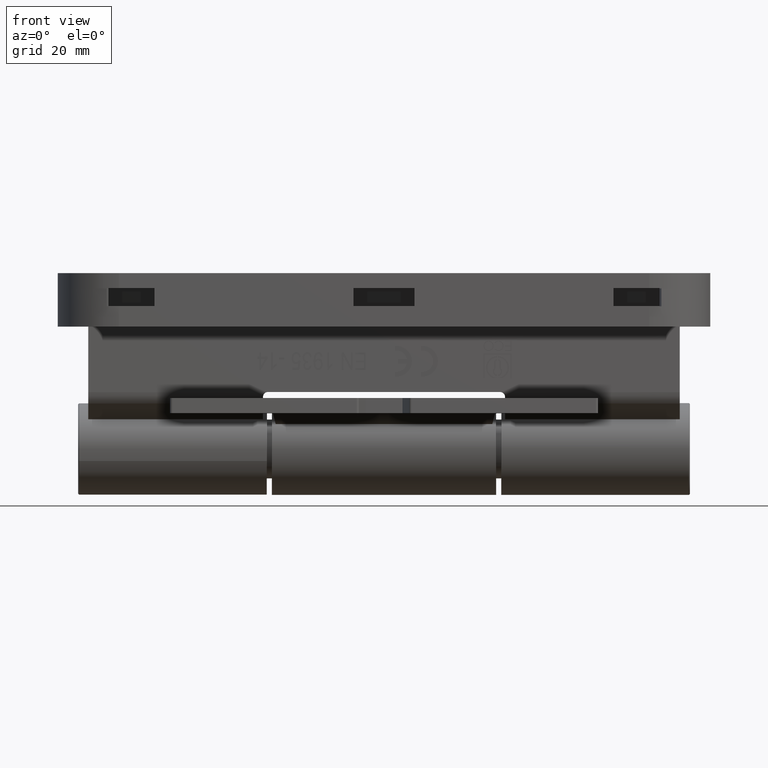
[diagram: clean part render]
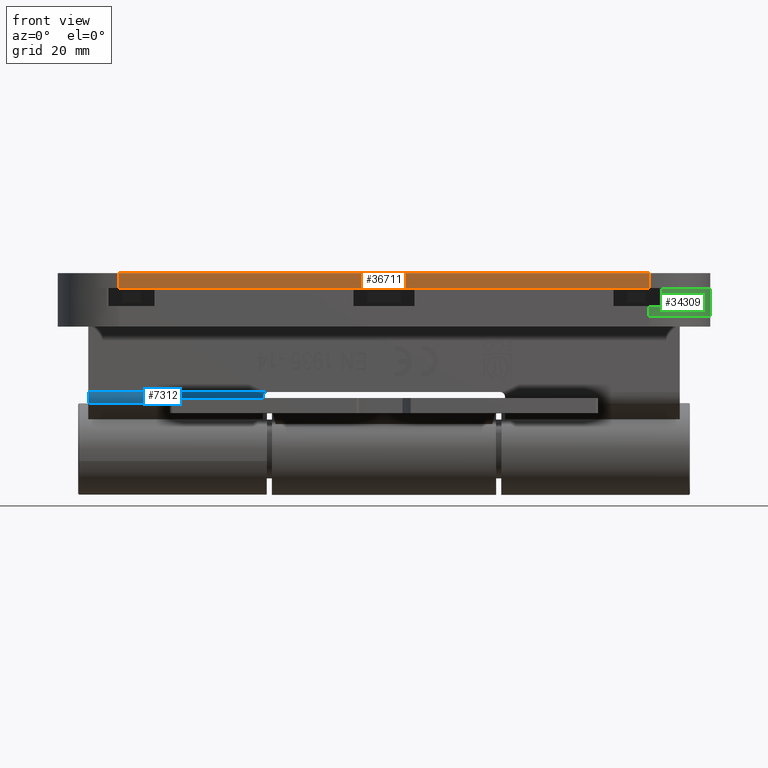
[diagram: same view with three faces highlighted in distinct colors, each labeled with its STEP entity id]
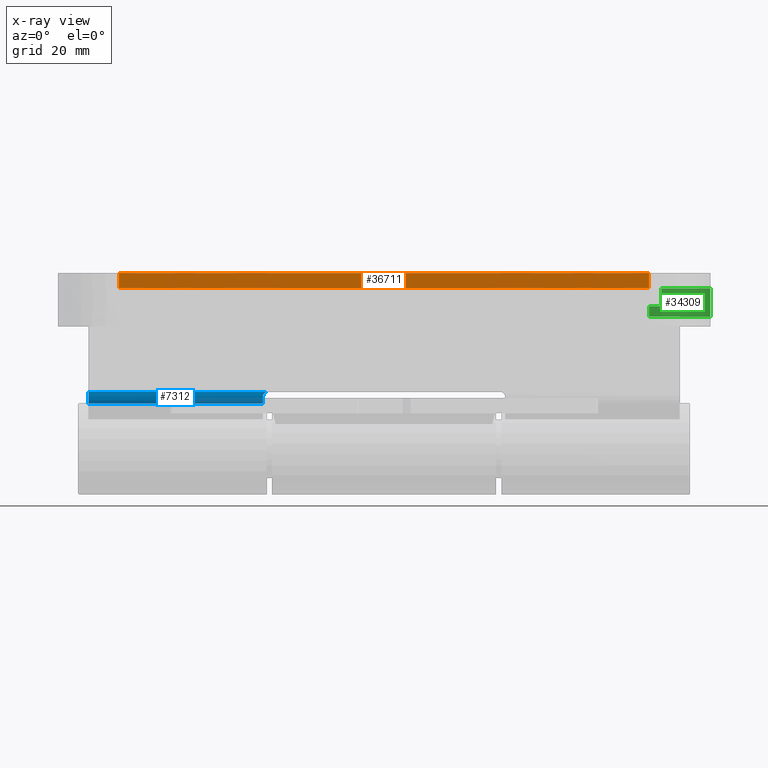
[diagram: x-ray of the same camera — body ghosted, the three highlighted faces saturated]
A machine part, front view with three faces highlighted in distinct colors.
The next image is the same camera in x-ray (body ghosted, the three faces saturated) — at least one of them is partly hidden behind the body in this view.
Their STEP definitions:

[orange] entity #36711 — the highlighted planar face has unit normal (-0, -1, -0).
#714 = CARTESIAN_POINT ( 'NONE',  ( 2.775557561562891351E-14, 51.99999999999999289, 0.000000000000000000 ) ) ;
#1674 = VERTEX_POINT ( 'NONE', #28899 ) ;
#6886 = CARTESIAN_POINT ( 'NONE',  ( 4.163336342344337027E-14, 64.00000000000000000, 0.000000000000000000 ) ) ;
#7826 = ORIENTED_EDGE ( 'NONE', *, *, #23170, .F. ) ;
#8735 = CARTESIAN_POINT ( 'NONE',  ( -3.469446951953614189E-14, -52.00000000000002132, -2.760696280273786662 ) ) ;
#9075 = DIRECTION ( 'NONE',  ( 5.916456789157588541E-31, 1.295404630198729935E-30, 1.000000000000000000 ) ) ;
#9267 = LINE ( 'NONE', #8735, #33340 ) ;
#9695 = DIRECTION ( 'NONE',  ( 1.000000000000000000, 6.661338147750980658E-16, -1.224646799147359370E-16 ) ) ;
#13073 = EDGE_CURVE ( 'NONE', #1674, #30414, #33997, .T. ) ;
#16693 = CARTESIAN_POINT ( 'NONE',  ( 4.163336342344337027E-14, 64.00000000000000000, 2.999999999999999112 ) ) ;
#19264 = DIRECTION ( 'NONE',  ( -6.661338147750984602E-16, -1.000000000000000000, -1.295404630198729585E-30 ) ) ;
#21717 = LINE ( 'NONE', #26376, #51412 ) ;
#23170 = EDGE_CURVE ( 'NONE', #27733, #24642, #40714, .T. ) ;
#24642 = VERTEX_POINT ( 'NONE', #42867 ) ;
#26127 = EDGE_CURVE ( 'NONE', #24642, #30414, #9267, .T. ) ;
#26376 = CARTESIAN_POINT ( 'NONE',  ( 3.469446951953614189E-14, 51.99999999999999289, -2.760696280273786662 ) ) ;
#26726 = PLANE ( 'NONE',  #43043 ) ;
#27733 = VERTEX_POINT ( 'NONE', #714 ) ;
#27888 = CARTESIAN_POINT ( 'NONE',  ( -3.469446951953614189E-14, -52.00000000000002132, 2.999999999999999112 ) ) ;
#28899 = CARTESIAN_POINT ( 'NONE',  ( 2.775557561562891351E-14, 51.99999999999999289, 2.999999999999999112 ) ) ;
#30414 = VERTEX_POINT ( 'NONE', #27888 ) ;
#33340 = VECTOR ( 'NONE', #42536, 1000.000000000000000 ) ;
#33997 = LINE ( 'NONE', #16693, #44540 ) ;
#36711 = ADVANCED_FACE ( 'NONE', ( #51999 ), #26726, .T. ) ;
#37411 = ORIENTED_EDGE ( 'NONE', *, *, #13073, .T. ) ;
#40169 = ORIENTED_EDGE ( 'NONE', *, *, #44958, .T. ) ;
#40714 = LINE ( 'NONE', #6886, #53414 ) ;
#42536 = DIRECTION ( 'NONE',  ( 5.916456789157588541E-31, 1.295404630198729935E-30, 1.000000000000000000 ) ) ;
#42867 = CARTESIAN_POINT ( 'NONE',  ( -2.775557561562891351E-14, -52.00000000000002132, 3.469446951953614189E-15 ) ) ;
#43043 = AXIS2_PLACEMENT_3D ( 'NONE', #43229, #9695, #47350 ) ;
#43229 = CARTESIAN_POINT ( 'NONE',  ( 4.163336342344337027E-14, 64.00000000000000000, 0.000000000000000000 ) ) ;
#44540 = VECTOR ( 'NONE', #45835, 1000.000000000000000 ) ;
#44958 = EDGE_CURVE ( 'NONE', #27733, #1674, #21717, .T. ) ;
#45835 = DIRECTION ( 'NONE',  ( -6.661338147750984602E-16, -1.000000000000000000, -1.295404630198729585E-30 ) ) ;
#47350 = DIRECTION ( 'NONE',  ( -1.224646799147359370E-16, -1.376982494605543984E-30, -1.000000000000000000 ) ) ;
#51412 = VECTOR ( 'NONE', #9075, 1000.000000000000000 ) ;
#51999 = FACE_OUTER_BOUND ( 'NONE', #52665, .T. ) ;
#52142 = ORIENTED_EDGE ( 'NONE', *, *, #26127, .F. ) ;
#52665 = EDGE_LOOP ( 'NONE', ( #7826, #40169, #37411, #52142 ) ) ;
#53414 = VECTOR ( 'NONE', #19264, 1000.000000000000000 ) ;

[blue] entity #7312 — the highlighted cylindrical surface (edge-blend (fillet) strip) has radius 3.5 mm, axis along (1, 0, 0).
#308 = ORIENTED_EDGE ( 'NONE', *, *, #34612, .F. ) ;
#1348 = EDGE_CURVE ( 'NONE', #27040, #42845, #50378, .T. ) ;
#3172 = CARTESIAN_POINT ( 'NONE',  ( -27.00198344250299698, 23.25764091194345085, 23.44263621508848772 ) ) ;
#3556 = DIRECTION ( 'NONE',  ( -6.661338147750984602E-16, -1.000000000000000000, -1.295404630198729585E-30 ) ) ;
#7312 = ADVANCED_FACE ( 'NONE', ( #8212 ), #38171, .T. ) ;
#7837 = CARTESIAN_POINT ( 'NONE',  ( -26.99972891110001427, 23.01392900316891854, 23.34072689707297243 ) ) ;
#8160 = EDGE_CURVE ( 'NONE', #35399, #31731, #30858, .T. ) ;
#8212 = FACE_OUTER_BOUND ( 'NONE', #31329, .T. ) ;
#8887 = DIRECTION ( 'NONE',  ( -6.661338147750984602E-16, -1.000000000000000000, -1.295404630198729585E-30 ) ) ;
#9536 = CARTESIAN_POINT ( 'NONE',  ( -27.14589803375030641, 23.74999999999998579, 24.31427028705643067 ) ) ;
#12234 = CARTESIAN_POINT ( 'NONE',  ( -26.99999999999997158, 22.88318404115338112, 23.31427028705642002 ) ) ;
#15159 = ORIENTED_EDGE ( 'NONE', *, *, #16995, .T. ) ;
#15813 = CARTESIAN_POINT ( 'NONE',  ( -27.14589803375030641, 23.74999999999998579, 24.31427028705643067 ) ) ;
#16085 = CARTESIAN_POINT ( 'NONE',  ( -27.00468803263734685, 23.36920283629278217, 23.51815446720102543 ) ) ;
#16820 = CARTESIAN_POINT ( 'NONE',  ( -26.99999999999997868, 22.74999999999997868, 23.31427028705642357 ) ) ;
#16899 = EDGE_CURVE ( 'NONE', #31731, #17926, #39914, .T. ) ;
#16995 = EDGE_CURVE ( 'NONE', #35399, #27040, #36921, .T. ) ;
#17153 = CARTESIAN_POINT ( 'NONE',  ( -30.49999999999996447, 57.99999999999997158, 23.31427028705642712 ) ) ;
#17926 = VERTEX_POINT ( 'NONE', #9536 ) ;
#22189 = ORIENTED_EDGE ( 'NONE', *, *, #1348, .T. ) ;
#23125 = CARTESIAN_POINT ( 'NONE',  ( -27.84876091746157556, 23.74999999999997868, 25.59920602515079224 ) ) ;
#23628 = CARTESIAN_POINT ( 'NONE',  ( -27.84876091746155424, 57.99999999999997868, 25.59920602515079224 ) ) ;
#24622 = CARTESIAN_POINT ( 'NONE',  ( -27.03421654485031667, 23.62747417721506338, 23.81746787595652393 ) ) ;
#27040 = VERTEX_POINT ( 'NONE', #23628 ) ;
#28967 = DIRECTION ( 'NONE',  ( -6.661338147750984602E-16, -1.000000000000000000, -1.295404630198729585E-30 ) ) ;
#30001 = CARTESIAN_POINT ( 'NONE',  ( -30.49999999999998579, 23.74999999999997513, 23.31427028705642712 ) ) ;
#30858 = LINE ( 'NONE', #50653, #41711 ) ;
#31329 = EDGE_LOOP ( 'NONE', ( #15159, #22189, #308, #43526, #44503 ) ) ;
#31731 = VERTEX_POINT ( 'NONE', #16820 ) ;
#32856 = CARTESIAN_POINT ( 'NONE',  ( -27.02059724527323681, 23.55360802881245874, 23.70482243274467038 ) ) ;
#33231 = DIRECTION ( 'NONE',  ( 0.000000000000000000, 0.000000000000000000, -1.000000000000000000 ) ) ;
#33583 = DIRECTION ( 'NONE',  ( -6.661338147750984602E-16, -1.000000000000000000, -1.295404630198729585E-30 ) ) ;
#34612 = EDGE_CURVE ( 'NONE', #17926, #42845, #39393, .T. ) ;
#35399 = VERTEX_POINT ( 'NONE', #47156 ) ;
#36921 = CIRCLE ( 'NONE', #45708, 3.500000000000003109 ) ;
#36989 = CARTESIAN_POINT ( 'NONE',  ( -26.99999999999997868, 22.74999999999997868, 23.31427028705642357 ) ) ;
#37720 = DIRECTION ( 'NONE',  ( -1.000000000000000000, -9.912705577010316675E-16, 0.000000000000000000 ) ) ;
#37765 = CARTESIAN_POINT ( 'NONE',  ( -27.84876091746154714, 63.99999999999997158, 25.59920602515079224 ) ) ;
#38171 = CYLINDRICAL_SURFACE ( 'NONE', #53042, 3.499999999999999556 ) ;
#39393 = CIRCLE ( 'NONE', #53430, 3.500000000000003109 ) ;
#39914 = B_SPLINE_CURVE_WITH_KNOTS ( 'NONE', 3,
 ( #36989, #12234, #7837, #3172, #16085, #32856, #24622, #40561, #53463, #15813 ),
 .UNSPECIFIED., .F., .F.,
 ( 4, 2, 2, 2, 4 ),
 ( 0.000000000000000000, 0.0003938890361775590726, 0.0007877780723551181452, 0.001181667108532677164, 0.001575556144710236290 ),
 .UNSPECIFIED. ) ;
#40561 = CARTESIAN_POINT ( 'NONE',  ( -27.07762889126611228, 23.72508470625577459, 24.05739797835029847 ) ) ;
#41208 = CARTESIAN_POINT ( 'NONE',  ( -30.49999999999995381, 63.99999999999995737, 23.31427028705642712 ) ) ;
#41711 = VECTOR ( 'NONE', #8887, 1000.000000000000000 ) ;
#42845 = VERTEX_POINT ( 'NONE', #23125 ) ;
#43526 = ORIENTED_EDGE ( 'NONE', *, *, #16899, .F. ) ;
#44503 = ORIENTED_EDGE ( 'NONE', *, *, #8160, .F. ) ;
#45708 = AXIS2_PLACEMENT_3D ( 'NONE', #17153, #47829, #54275 ) ;
#47156 = CARTESIAN_POINT ( 'NONE',  ( -26.99999999999996447, 57.99999999999997158, 23.31427028705642357 ) ) ;
#47829 = DIRECTION ( 'NONE',  ( -6.661338147750984602E-16, -1.000000000000000000, -1.295404630198729585E-30 ) ) ;
#48038 = VECTOR ( 'NONE', #28967, 1000.000000000000000 ) ;
#50378 = LINE ( 'NONE', #37765, #48038 ) ;
#50653 = CARTESIAN_POINT ( 'NONE',  ( -26.99999999999995381, 63.99999999999997158, 23.31427028705642357 ) ) ;
#53042 = AXIS2_PLACEMENT_3D ( 'NONE', #41208, #3556, #33231 ) ;
#53430 = AXIS2_PLACEMENT_3D ( 'NONE', #30001, #33583, #37720 ) ;
#53463 = CARTESIAN_POINT ( 'NONE',  ( -27.10785089558568473, 23.74999999999998934, 24.18665630612829887 ) ) ;
#54275 = DIRECTION ( 'NONE',  ( -1.000000000000000000, 0.000000000000000000, 0.000000000000000000 ) ) ;

[green] entity #34309 — the highlighted cylindrical surface (partial cylindrical patch) has radius 12 mm, axis along (-0, -0, 1).
#2339 = VERTEX_POINT ( 'NONE', #43355 ) ;
#3799 = EDGE_LOOP ( 'NONE', ( #9652, #53758, #17575, #7401, #44456, #8140 ) ) ;
#4037 = AXIS2_PLACEMENT_3D ( 'NONE', #22260, #39025, #42064 ) ;
#5150 = DIRECTION ( 'NONE',  ( -1.000000000000000000, 0.000000000000000000, 0.000000000000000000 ) ) ;
#6258 = DIRECTION ( 'NONE',  ( -1.000000000000000000, 0.000000000000000000, 0.000000000000000000 ) ) ;
#7401 = ORIENTED_EDGE ( 'NONE', *, *, #36472, .T. ) ;
#7707 = EDGE_CURVE ( 'NONE', #39315, #2339, #49374, .T. ) ;
#8140 = ORIENTED_EDGE ( 'NONE', *, *, #23418, .T. ) ;
#8145 = CARTESIAN_POINT ( 'NONE',  ( -15.99999999999998934, -52.00000000000000711, -1.999999999999998224 ) ) ;
#9652 = ORIENTED_EDGE ( 'NONE', *, *, #23367, .F. ) ;
#10926 = DIRECTION ( 'NONE',  ( 0.000000000000000000, 0.000000000000000000, 1.000000000000000000 ) ) ;
#10932 = VECTOR ( 'NONE', #45256, 1000.000000000000000 ) ;
#11440 = CIRCLE ( 'NONE', #14054, 11.99999999999999645 ) ;
#11659 = CARTESIAN_POINT ( 'NONE',  ( -3.999999999999986233, -64.00000000000000000, -1.999999999999998224 ) ) ;
#13094 = CIRCLE ( 'NONE', #21891, 11.99999999999999645 ) ;
#13169 = CARTESIAN_POINT ( 'NONE',  ( -15.75755076535923926, -54.40000000000000568, 3.499999999999999556 ) ) ;
#13651 = LINE ( 'NONE', #30421, #20977 ) ;
#14054 = AXIS2_PLACEMENT_3D ( 'NONE', #15050, #10926, #6258 ) ;
#14900 = CYLINDRICAL_SURFACE ( 'NONE', #27974, 11.99999999999999645 ) ;
#15050 = CARTESIAN_POINT ( 'NONE',  ( -3.999999999999986233, -52.00000000000000711, 3.499999999999999556 ) ) ;
#16312 = LINE ( 'NONE', #11659, #36928 ) ;
#16427 = EDGE_CURVE ( 'NONE', #38539, #31764, #11440, .T. ) ;
#17231 = DIRECTION ( 'NONE',  ( 0.000000000000000000, 0.000000000000000000, -1.000000000000000000 ) ) ;
#17575 = ORIENTED_EDGE ( 'NONE', *, *, #44995, .T. ) ;
#18207 = FACE_OUTER_BOUND ( 'NONE', #3799, .T. ) ;
#20977 = VECTOR ( 'NONE', #17231, 1000.000000000000000 ) ;
#21891 = AXIS2_PLACEMENT_3D ( 'NONE', #51047, #25506, #5150 ) ;
#22260 = CARTESIAN_POINT ( 'NONE',  ( -3.999999999999986233, -52.00000000000000711, -1.999999999999998224 ) ) ;
#23367 = EDGE_CURVE ( 'NONE', #2339, #26312, #13094, .T. ) ;
#23418 = EDGE_CURVE ( 'NONE', #38539, #26312, #13651, .T. ) ;
#23831 = CARTESIAN_POINT ( 'NONE',  ( -3.999999999999986233, -64.00000000000000000, -1.999999999999998224 ) ) ;
#25506 = DIRECTION ( 'NONE',  ( 0.000000000000000000, 0.000000000000000000, 1.000000000000000000 ) ) ;
#26312 = VERTEX_POINT ( 'NONE', #47981 ) ;
#27974 = AXIS2_PLACEMENT_3D ( 'NONE', #31671, #51741, #38859 ) ;
#30421 = CARTESIAN_POINT ( 'NONE',  ( -15.75755076535923926, -54.40000000000000568, 3.499999999999999556 ) ) ;
#31671 = CARTESIAN_POINT ( 'NONE',  ( -3.999999999999986233, -52.00000000000000711, -1.999999999999998224 ) ) ;
#31764 = VERTEX_POINT ( 'NONE', #33859 ) ;
#31822 = CARTESIAN_POINT ( 'NONE',  ( -15.99999999999998934, -52.00000000000000711, -1.999999999999998224 ) ) ;
#33859 = CARTESIAN_POINT ( 'NONE',  ( -3.999999999999986233, -64.00000000000000000, 3.499999999999999556 ) ) ;
#34309 = ADVANCED_FACE ( 'NONE', ( #18207 ), #14900, .T. ) ;
#36472 = EDGE_CURVE ( 'NONE', #51371, #31764, #16312, .T. ) ;
#36928 = VECTOR ( 'NONE', #45184, 1000.000000000000000 ) ;
#38539 = VERTEX_POINT ( 'NONE', #13169 ) ;
#38859 = DIRECTION ( 'NONE',  ( 1.000000000000000000, 0.000000000000000000, 0.000000000000000000 ) ) ;
#39025 = DIRECTION ( 'NONE',  ( 0.000000000000000000, 0.000000000000000000, 1.000000000000000000 ) ) ;
#39315 = VERTEX_POINT ( 'NONE', #31822 ) ;
#42064 = DIRECTION ( 'NONE',  ( -1.000000000000000000, 0.000000000000000000, 0.000000000000000000 ) ) ;
#43355 = CARTESIAN_POINT ( 'NONE',  ( -15.99999999999998934, -52.00000000000000711, 0.000000000000000000 ) ) ;
#44456 = ORIENTED_EDGE ( 'NONE', *, *, #16427, .F. ) ;
#44995 = EDGE_CURVE ( 'NONE', #39315, #51371, #49649, .T. ) ;
#45184 = DIRECTION ( 'NONE',  ( 0.000000000000000000, 0.000000000000000000, 1.000000000000000000 ) ) ;
#45256 = DIRECTION ( 'NONE',  ( 0.000000000000000000, 0.000000000000000000, 1.000000000000000000 ) ) ;
#47981 = CARTESIAN_POINT ( 'NONE',  ( -15.75755076535923926, -54.40000000000000568, 0.000000000000000000 ) ) ;
#49374 = LINE ( 'NONE', #8145, #10932 ) ;
#49649 = CIRCLE ( 'NONE', #4037, 11.99999999999999645 ) ;
#51047 = CARTESIAN_POINT ( 'NONE',  ( -3.999999999999986233, -52.00000000000000711, 0.000000000000000000 ) ) ;
#51371 = VERTEX_POINT ( 'NONE', #23831 ) ;
#51741 = DIRECTION ( 'NONE',  ( 0.000000000000000000, 0.000000000000000000, 1.000000000000000000 ) ) ;
#53758 = ORIENTED_EDGE ( 'NONE', *, *, #7707, .F. ) ;